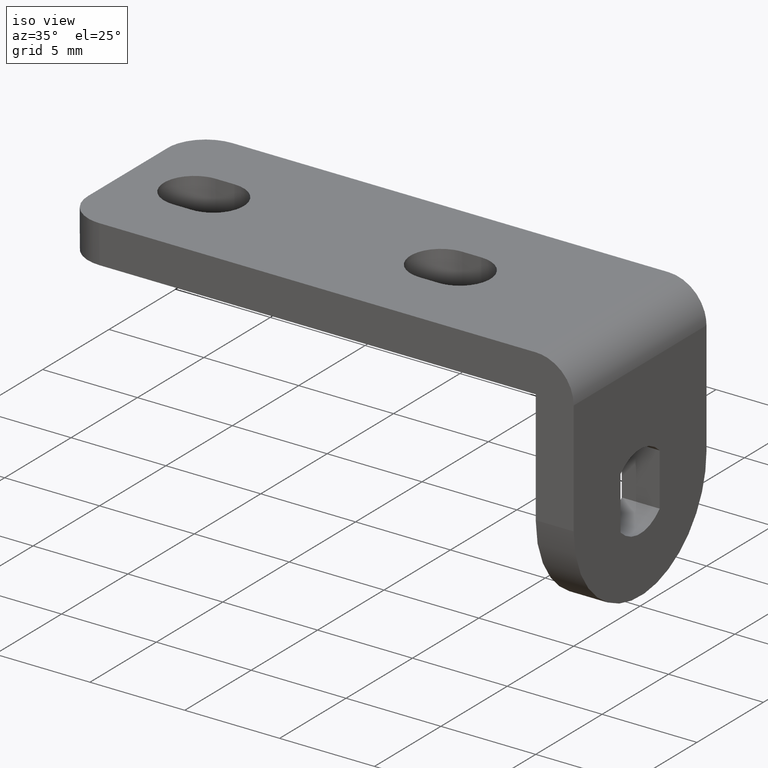
[diagram: clean part render]
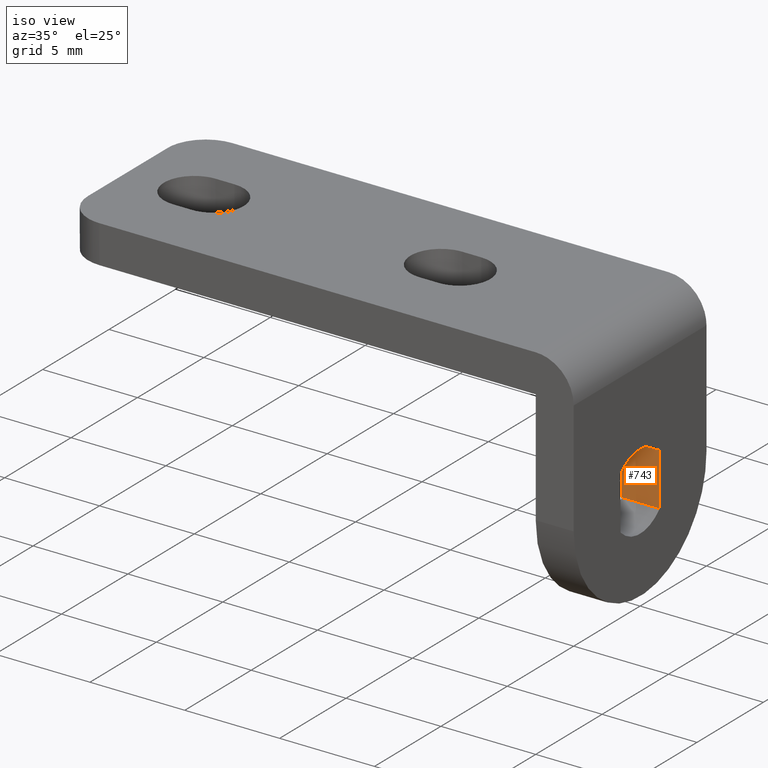
[diagram: same view with one face highlighted and labeled with its STEP entity id]
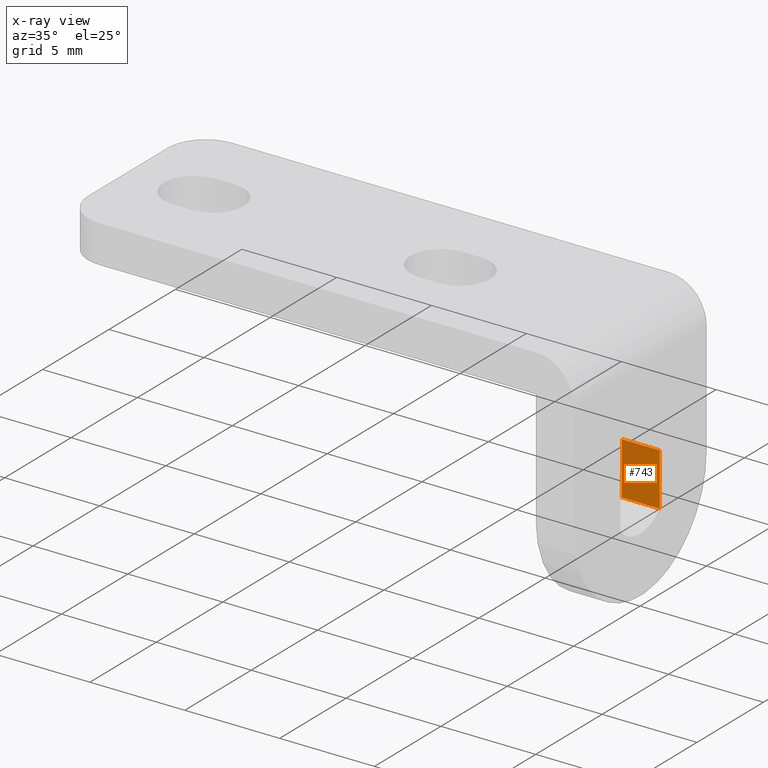
[diagram: x-ray of the same camera — body ghosted, the highlighted face saturated]
A machine part, iso view. The second image highlights one B-rep face of the part: STEP entity #743.
The next image is the same camera in x-ray: the body ghosted, the highlighted face saturated — about 3% of this face is hidden behind the body in this view.
In plain terms, the highlighted face is a freeform B-spline surface patch.
Its self-contained STEP definition (entity closure, byte-faithful):
#65=CARTESIAN_POINT('',(-2.0,1.474999999999910,-1.387443692551102));
#66=VERTEX_POINT('',#65);
#83=CARTESIAN_POINT('',(-2.0,1.474999999999910,1.387443692550988));
#84=VERTEX_POINT('',#83);
#85=CARTESIAN_POINT('',(-2.0,1.474999999999910,-1.387443692551102));
#86=CARTESIAN_POINT('',(-2.0,1.474999999999910,1.387443692550988));
#87=QUASI_UNIFORM_CURVE('',1,(#85,#86),.UNSPECIFIED.,.F.,.U.);
#88=EDGE_CURVE('',#66,#84,#87,.T.);
#696=CARTESIAN_POINT('',(0.0,1.474999999999910,1.387443692550988));
#697=VERTEX_POINT('',#696);
#698=CARTESIAN_POINT('',(0.0,1.474999999999910,1.387443692550988));
#699=CARTESIAN_POINT('',(-2.0,1.474999999999910,1.387443692550988));
#700=QUASI_UNIFORM_CURVE('',1,(#698,#699),.UNSPECIFIED.,.F.,.U.);
#701=EDGE_CURVE('',#697,#84,#700,.T.);
#722=CARTESIAN_POINT('',(-2.099899996123612,1.474999999999910,1.526049312058567));
#723=CARTESIAN_POINT('',(-2.099899996123612,1.474999999999910,-1.526049386486961));
#724=CARTESIAN_POINT('',(0.099900049767792,1.474999999999910,1.526049312058567));
#725=CARTESIAN_POINT('',(0.099900049767792,1.474999999999910,-1.526049386486961));
#726=B_SPLINE_SURFACE_WITH_KNOTS('',1,1,((#722,#724),(#723,#725)),.UNSPECIFIED.,.F.,.F.,.U.,(2,2),(2,2),(0.0,3.052098698545529),(0.0,2.199800045891404),.UNSPECIFIED.);
#727=ORIENTED_EDGE('',*,*,#88,.F.);
#728=CARTESIAN_POINT('',(0.0,1.474999999999910,-1.387443692551102));
#729=VERTEX_POINT('',#728);
#730=CARTESIAN_POINT('',(0.0,1.474999999999910,-1.387443692551102));
#731=CARTESIAN_POINT('',(-2.0,1.474999999999910,-1.387443692551102));
#732=QUASI_UNIFORM_CURVE('',1,(#730,#731),.UNSPECIFIED.,.F.,.U.);
#733=EDGE_CURVE('',#729,#66,#732,.T.);
#734=ORIENTED_EDGE('',*,*,#733,.F.);
#735=CARTESIAN_POINT('',(0.0,1.474999999999910,-1.387443692551102));
#736=CARTESIAN_POINT('',(0.0,1.474999999999910,1.387443692550988));
#737=QUASI_UNIFORM_CURVE('',1,(#735,#736),.UNSPECIFIED.,.F.,.U.);
#738=EDGE_CURVE('',#729,#697,#737,.T.);
#739=ORIENTED_EDGE('',*,*,#738,.T.);
#740=ORIENTED_EDGE('',*,*,#701,.T.);
#741=EDGE_LOOP('',(#727,#734,#739,#740));
#742=FACE_OUTER_BOUND('',#741,.T.);
#743=ADVANCED_FACE('',(#742),#726,.T.);